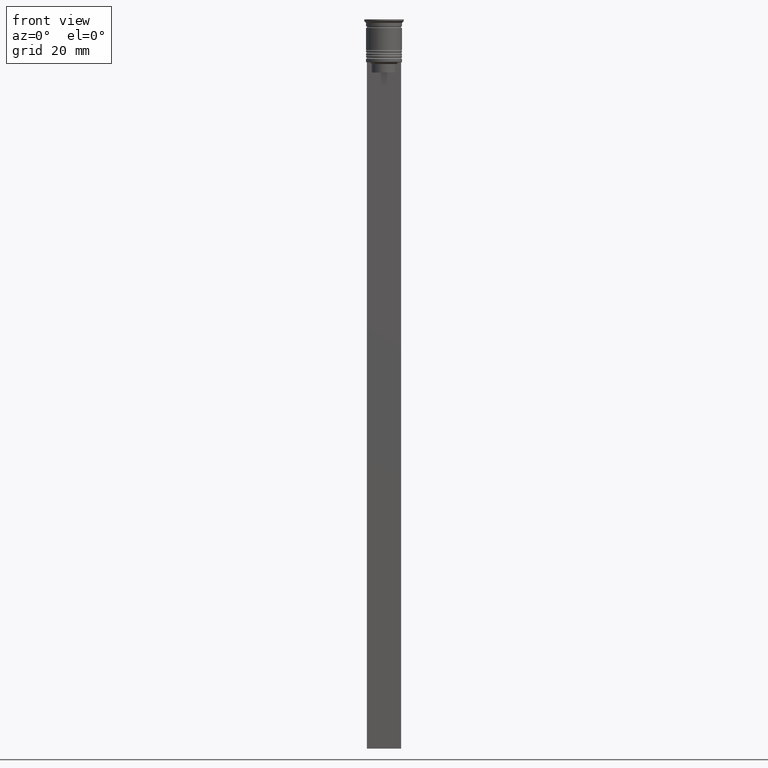
[diagram: clean part render]
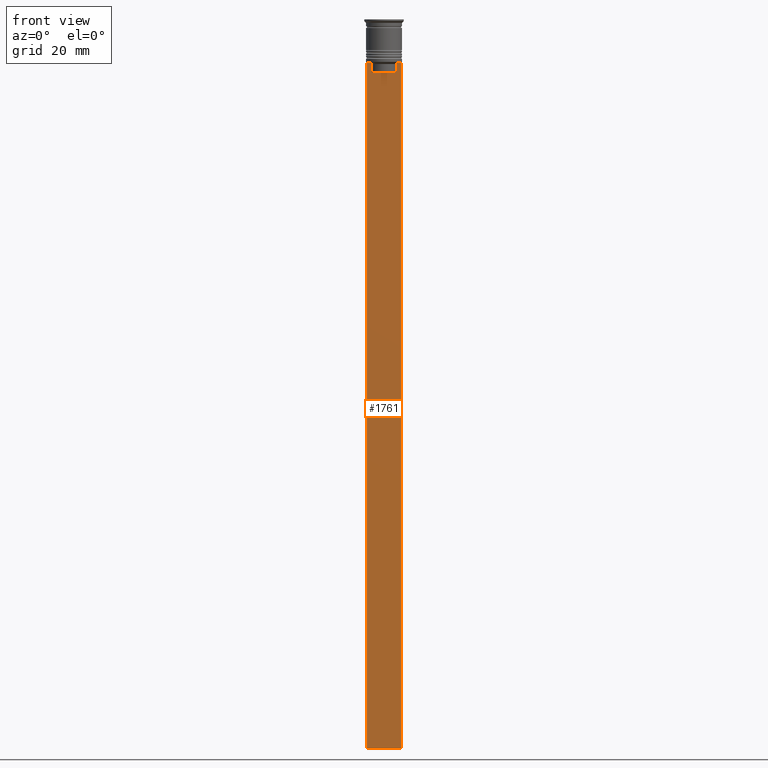
[diagram: same view with one face highlighted and labeled with its STEP entity id]
A machine part, front view. The second image highlights one B-rep face of the part: STEP entity #1761.
In plain terms, the highlighted planar face has unit normal (0, -1, -0).
Its self-contained STEP definition (entity closure, byte-faithful):
#22 = DIRECTION ( 'NONE',  ( 1.000000000000000000, 0.000000000000000000, 0.000000000000000000 ) ) ;
#28 = CARTESIAN_POINT ( 'NONE',  ( 5.000000000000000000, -0.5000000000000008882, -212.5000000000000284 ) ) ;
#63 = CARTESIAN_POINT ( 'NONE',  ( -3.615591237958188486, -0.5000000000000008882, -15.50000000000000000 ) ) ;
#75 = EDGE_CURVE ( 'NONE', #618, #430, #1941, .T. ) ;
#117 = EDGE_CURVE ( 'NONE', #376, #430, #2045, .T. ) ;
#140 = CARTESIAN_POINT ( 'NONE',  ( -3.783746449387932476, -0.5000000000000008882, -12.83342999751715752 ) ) ;
#195 = LINE ( 'NONE', #2224, #1103 ) ;
#205 = B_SPLINE_CURVE_WITH_KNOTS ( 'NONE', 3,
 ( #1216, #671, #847, #1952 ),
 .UNSPECIFIED., .F., .F.,
 ( 4, 4 ),
 ( 0.01745179617248909451, 0.01816207215777257411 ),
 .UNSPECIFIED. ) ;
#208 = DIRECTION ( 'NONE',  ( -1.000000000000000000, 0.000000000000000000, 0.000000000000000000 ) ) ;
#224 = VERTEX_POINT ( 'NONE', #730 ) ;
#270 = VECTOR ( 'NONE', #1061, 1000.000000000000000 ) ;
#308 = CARTESIAN_POINT ( 'NONE',  ( 5.000000000000000000, -0.5000000000000008882, -12.50000000000000000 ) ) ;
#334 = CARTESIAN_POINT ( 'NONE',  ( -4.999999999999999112, -0.5000000000000008882, -212.5000000000000284 ) ) ;
#376 = VERTEX_POINT ( 'NONE', #1333 ) ;
#393 = ORIENTED_EDGE ( 'NONE', *, *, #1806, .F. ) ;
#429 = EDGE_CURVE ( 'NONE', #1317, #479, #205, .T. ) ;
#430 = VERTEX_POINT ( 'NONE', #334 ) ;
#434 = EDGE_CURVE ( 'NONE', #1842, #517, #1237, .T. ) ;
#479 = VERTEX_POINT ( 'NONE', #2162 ) ;
#497 = CARTESIAN_POINT ( 'NONE',  ( 5.000000000000000000, -0.5000000000000008882, -2.450124378879110054 ) ) ;
#517 = VERTEX_POINT ( 'NONE', #1938 ) ;
#534 = DIRECTION ( 'NONE',  ( 1.000000000000000000, 0.000000000000000000, 0.000000000000000000 ) ) ;
#543 = LINE ( 'NONE', #588, #937 ) ;
#588 = CARTESIAN_POINT ( 'NONE',  ( 3.615591237958188042, -0.5000000000000008882, 0.000000000000000000 ) ) ;
#618 = VERTEX_POINT ( 'NONE', #1852 ) ;
#637 = EDGE_CURVE ( 'NONE', #805, #1842, #195, .T. ) ;
#639 = ORIENTED_EDGE ( 'NONE', *, *, #75, .T. ) ;
#645 = VECTOR ( 'NONE', #1766, 1000.000000000000000 ) ;
#649 = VECTOR ( 'NONE', #534, 1000.000000000000000 ) ;
#671 = CARTESIAN_POINT ( 'NONE',  ( 3.783746406711540278, -0.5000000000000008882, -12.83343003979123509 ) ) ;
#697 = ORIENTED_EDGE ( 'NONE', *, *, #117, .F. ) ;
#730 = CARTESIAN_POINT ( 'NONE',  ( -4.119769411022908834, -0.5000000000000008882, -12.50000000000000000 ) ) ;
#733 = CARTESIAN_POINT ( 'NONE',  ( 5.000000000000000000, -0.5000000000000008882, -12.50000000000000000 ) ) ;
#805 = VERTEX_POINT ( 'NONE', #1712 ) ;
#847 = CARTESIAN_POINT ( 'NONE',  ( 3.951794168112528816, -0.5000000000000008882, -12.66675163073525745 ) ) ;
#865 = CARTESIAN_POINT ( 'NONE',  ( -3.615591237958188042, -0.5000000000000008882, -13.00000000000000178 ) ) ;
#871 = CARTESIAN_POINT ( 'NONE',  ( 3.615591237958188042, -0.5000000000000008882, -13.00000000000000178 ) ) ;
#881 = EDGE_CURVE ( 'NONE', #479, #1874, #895, .T. ) ;
#895 = LINE ( 'NONE', #308, #911 ) ;
#911 = VECTOR ( 'NONE', #22, 1000.000000000000000 ) ;
#921 = EDGE_CURVE ( 'NONE', #618, #224, #2170, .T. ) ;
#937 = VECTOR ( 'NONE', #1862, 1000.000000000000000 ) ;
#1039 = CARTESIAN_POINT ( 'NONE',  ( 0.000000000000000000, -0.5000000000000008882, -15.50000000000000000 ) ) ;
#1061 = DIRECTION ( 'NONE',  ( 1.000000000000000000, 0.000000000000000000, 0.000000000000000000 ) ) ;
#1062 = DIRECTION ( 'NONE',  ( 0.000000000000000000, 0.000000000000000000, -1.000000000000000000 ) ) ;
#1103 = VECTOR ( 'NONE', #1814, 1000.000000000000000 ) ;
#1216 = CARTESIAN_POINT ( 'NONE',  ( 3.615591237958188042, -0.5000000000000008882, -13.00000000000000178 ) ) ;
#1237 = LINE ( 'NONE', #1039, #270 ) ;
#1274 = ORIENTED_EDGE ( 'NONE', *, *, #637, .F. ) ;
#1317 = VERTEX_POINT ( 'NONE', #871 ) ;
#1326 = ORIENTED_EDGE ( 'NONE', *, *, #2094, .F. ) ;
#1333 = CARTESIAN_POINT ( 'NONE',  ( 5.000000000000000000, -0.5000000000000008882, -212.5000000000000284 ) ) ;
#1385 = VECTOR ( 'NONE', #208, 1000.000000000000000 ) ;
#1507 = CARTESIAN_POINT ( 'NONE',  ( 5.000000000000000000, -0.5000000000000008882, -12.50000000000000000 ) ) ;
#1520 = EDGE_LOOP ( 'NONE', ( #1326, #1997, #639, #697, #2122, #2129, #2047, #393, #1787, #1274 ) ) ;
#1629 = CARTESIAN_POINT ( 'NONE',  ( 5.000000000000000000, -0.5000000000000008882, -2.450124378879110054 ) ) ;
#1706 = EDGE_CURVE ( 'NONE', #1874, #376, #2131, .T. ) ;
#1712 = CARTESIAN_POINT ( 'NONE',  ( -3.615591237958188042, -0.5000000000000008882, -13.00000000000000178 ) ) ;
#1761 = ADVANCED_FACE ( 'NONE', ( #2146 ), #1972, .T. ) ;
#1766 = DIRECTION ( 'NONE',  ( 0.000000000000000000, 0.000000000000000000, -1.000000000000000000 ) ) ;
#1773 = DIRECTION ( 'NONE',  ( 0.000000000000000000, -1.000000000000000000, -0.000000000000000000 ) ) ;
#1787 = ORIENTED_EDGE ( 'NONE', *, *, #434, .F. ) ;
#1806 = EDGE_CURVE ( 'NONE', #517, #1317, #543, .T. ) ;
#1814 = DIRECTION ( 'NONE',  ( 0.000000000000000000, 0.000000000000000000, -1.000000000000000000 ) ) ;
#1818 = VECTOR ( 'NONE', #1062, 1000.000000000000000 ) ;
#1842 = VERTEX_POINT ( 'NONE', #63 ) ;
#1852 = CARTESIAN_POINT ( 'NONE',  ( -4.999999999999999112, -0.5000000000000008882, -12.50000000000000000 ) ) ;
#1862 = DIRECTION ( 'NONE',  ( -0.000000000000000000, -0.000000000000000000, 1.000000000000000000 ) ) ;
#1874 = VERTEX_POINT ( 'NONE', #1507 ) ;
#1895 = AXIS2_PLACEMENT_3D ( 'NONE', #1629, #1773, #2155 ) ;
#1938 = CARTESIAN_POINT ( 'NONE',  ( 3.615591237958188486, -0.5000000000000008882, -15.50000000000000000 ) ) ;
#1941 = LINE ( 'NONE', #2166, #645 ) ;
#1952 = CARTESIAN_POINT ( 'NONE',  ( 4.119769411022908834, -0.5000000000000008882, -12.50000000000000000 ) ) ;
#1969 = CARTESIAN_POINT ( 'NONE',  ( -3.951794205566887985, -0.5000000000000008882, -12.66675159355373914 ) ) ;
#1972 = PLANE ( 'NONE',  #1895 ) ;
#1997 = ORIENTED_EDGE ( 'NONE', *, *, #921, .F. ) ;
#2045 = LINE ( 'NONE', #28, #1385 ) ;
#2047 = ORIENTED_EDGE ( 'NONE', *, *, #429, .F. ) ;
#2094 = EDGE_CURVE ( 'NONE', #224, #805, #2250, .T. ) ;
#2122 = ORIENTED_EDGE ( 'NONE', *, *, #1706, .F. ) ;
#2129 = ORIENTED_EDGE ( 'NONE', *, *, #881, .F. ) ;
#2131 = LINE ( 'NONE', #497, #1818 ) ;
#2146 = FACE_OUTER_BOUND ( 'NONE', #1520, .T. ) ;
#2152 = CARTESIAN_POINT ( 'NONE',  ( -4.119769411022908834, -0.5000000000000008882, -12.50000000000000000 ) ) ;
#2155 = DIRECTION ( 'NONE',  ( 0.000000000000000000, 0.000000000000000000, -1.000000000000000000 ) ) ;
#2162 = CARTESIAN_POINT ( 'NONE',  ( 4.119769411022908834, -0.5000000000000008882, -12.50000000000000000 ) ) ;
#2166 = CARTESIAN_POINT ( 'NONE',  ( -4.999999999999999112, -0.5000000000000008882, -2.450124378879110054 ) ) ;
#2170 = LINE ( 'NONE', #733, #649 ) ;
#2224 = CARTESIAN_POINT ( 'NONE',  ( -3.615591237958188042, -0.5000000000000008882, 0.000000000000000000 ) ) ;
#2250 = B_SPLINE_CURVE_WITH_KNOTS ( 'NONE', 3,
 ( #2152, #1969, #140, #865 ),
 .UNSPECIFIED., .F., .F.,
 ( 4, 4 ),
 ( 0.007067514914986629433, 0.007777582239375527978 ),
 .UNSPECIFIED. ) ;